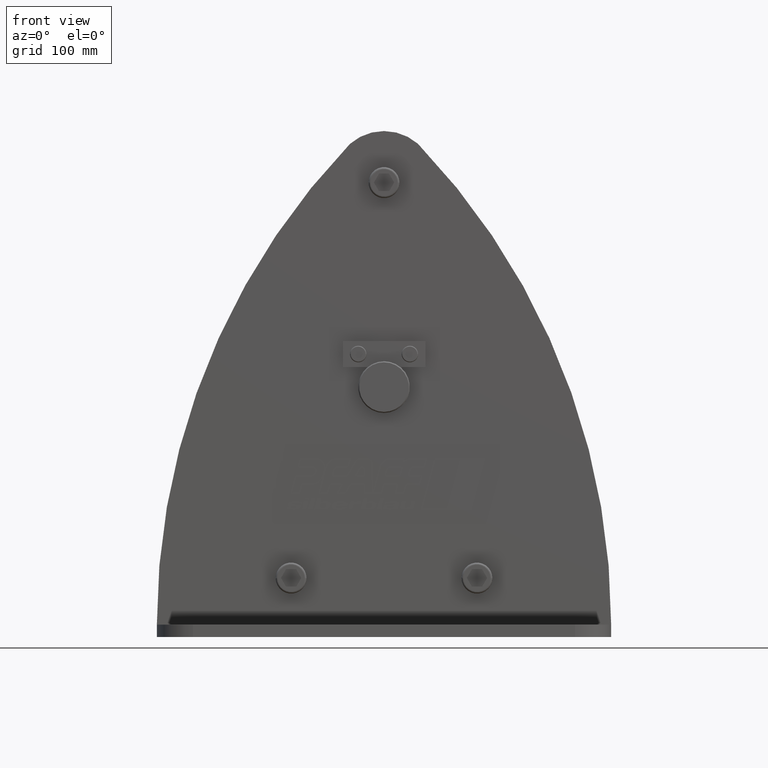
[diagram: clean part render]
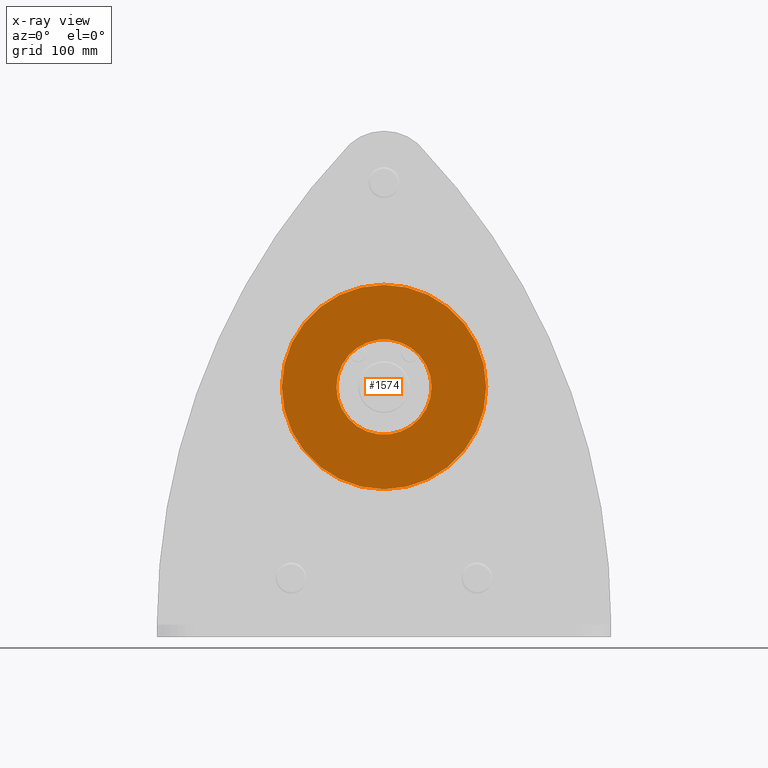
[diagram: x-ray — body ghosted, one internal face saturated and labeled with its STEP entity id]
A machine part, front view, then the same camera in x-ray: the body is ghosted and one INTERNAL B-rep face — a face not visible from any outside direction — is saturated and labeled: STEP entity #1574.
In plain terms, the highlighted planar face has unit normal (0, -1, 0).
Its self-contained STEP definition (entity closure, byte-faithful):
#1574=ADVANCED_FACE('',(#3388,#3389),#3390,.T.);
#3388=FACE_BOUND('',#5420,.T.);
#3389=FACE_OUTER_BOUND('',#5421,.T.);
#3390=PLANE('',#5422);
#5420=EDGE_LOOP('',(#10361,#10362));
#5421=EDGE_LOOP('',(#10363,#10364));
#5422=AXIS2_PLACEMENT_3D('',#10365,#10366,#10367);
#10361=ORIENTED_EDGE('',*,*,#13935,.T.);
#10362=ORIENTED_EDGE('',*,*,#12390,.T.);
#10363=ORIENTED_EDGE('',*,*,#12494,.T.);
#10364=ORIENTED_EDGE('',*,*,#13936,.T.);
#10365=CARTESIAN_POINT('',(49.5,-29.0,0.0));
#10366=DIRECTION('',(0.0,-1.0,0.0));
#10367=DIRECTION('',(1.0,0.0,0.0));
#12390=EDGE_CURVE('',#15009,#15006,#15010,.T.);
#12494=EDGE_CURVE('',#15172,#15174,#15176,.T.);
#13935=EDGE_CURVE('',#15006,#15009,#17305,.T.);
#13936=EDGE_CURVE('',#15174,#15172,#17306,.T.);
#15006=VERTEX_POINT('',#21179);
#15009=VERTEX_POINT('',#21183);
#15010=CIRCLE('',#21184,46.05);
#15172=VERTEX_POINT('',#22008);
#15174=VERTEX_POINT('',#22011);
#15176=CIRCLE('',#22014,99.0);
#17305=CIRCLE('',#24883,46.05);
#17306=CIRCLE('',#24884,99.0);
#21179=CARTESIAN_POINT('',(46.05,-29.0,0.0));
#21183=CARTESIAN_POINT('',(-46.05,-29.0,5.63949851007356E-015));
#21184=AXIS2_PLACEMENT_3D('',#27230,#27231,#27232);
#22008=CARTESIAN_POINT('',(99.0,-29.0,0.0));
#22011=CARTESIAN_POINT('',(-99.0,-29.0,1.21240033115588E-014));
#22014=AXIS2_PLACEMENT_3D('',#27378,#27379,#27380);
#24883=AXIS2_PLACEMENT_3D('',#29057,#29058,#29059);
#24884=AXIS2_PLACEMENT_3D('',#29060,#29061,#29062);
#27230=CARTESIAN_POINT('',(0.0,-29.0,0.0));
#27231=DIRECTION('',(-0.0,1.0,0.0));
#27232=DIRECTION('',(1.0,0.0,0.0));
#27378=CARTESIAN_POINT('',(0.0,-29.0,0.0));
#27379=DIRECTION('',(0.0,-1.0,0.0));
#27380=DIRECTION('',(1.0,0.0,0.0));
#29057=CARTESIAN_POINT('',(0.0,-29.0,0.0));
#29058=DIRECTION('',(-0.0,1.0,0.0));
#29059=DIRECTION('',(1.0,0.0,0.0));
#29060=CARTESIAN_POINT('',(0.0,-29.0,0.0));
#29061=DIRECTION('',(0.0,-1.0,0.0));
#29062=DIRECTION('',(1.0,0.0,0.0));